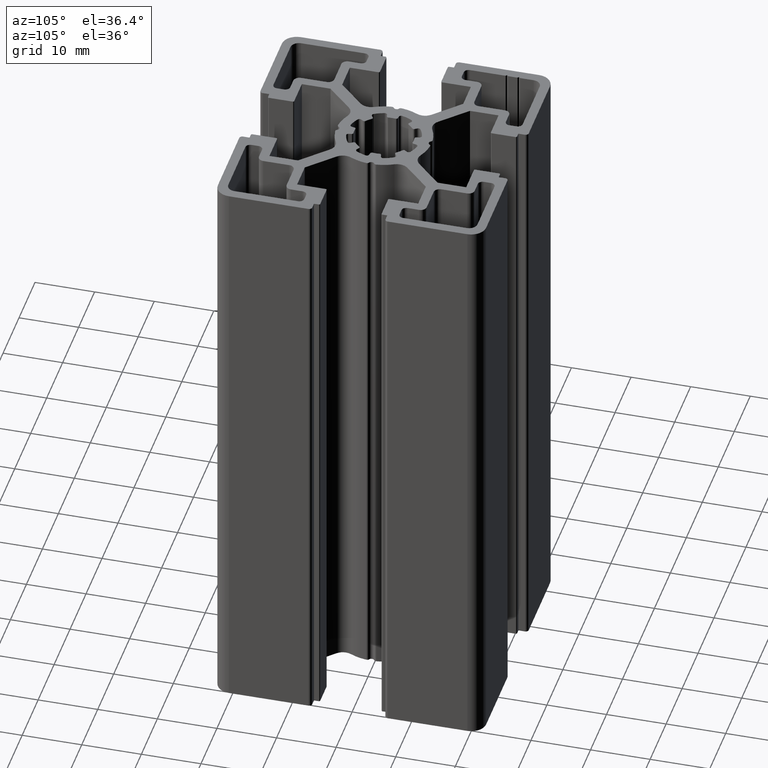
[diagram: clean part render]
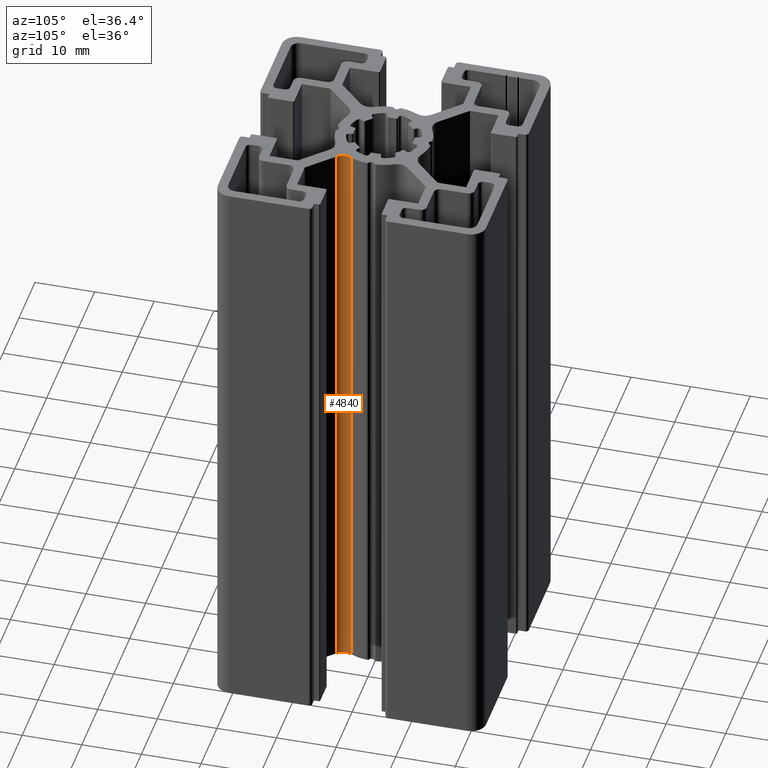
[diagram: same view with one face highlighted and labeled with its STEP entity id]
A machine part, auxiliary view. The second image highlights one B-rep face of the part: STEP entity #4840.
In plain terms, the highlighted cylindrical surface (edge-blend (fillet) strip) has radius 2 mm, axis along (0, 0, 1).
Its self-contained STEP definition (entity closure, byte-faithful):
#199=CIRCLE('',#5265,2.);
#200=CIRCLE('',#5266,2.);
#384=CYLINDRICAL_SURFACE('',#5264,2.);
#584=FACE_OUTER_BOUND('',#832,.T.);
#832=EDGE_LOOP('',(#3705,#3706,#3707,#3708));
#1219=LINE('',#7879,#1685);
#1220=LINE('',#7885,#1686);
#1685=VECTOR('',#6391,100.);
#1686=VECTOR('',#6398,100.);
#2175=VERTEX_POINT('',#7875);
#2176=VERTEX_POINT('',#7877);
#2177=VERTEX_POINT('',#7881);
#2178=VERTEX_POINT('',#7883);
#2817=EDGE_CURVE('',#2176,#2175,#1219,.T.);
#2818=EDGE_CURVE('',#2175,#2177,#199,.T.);
#2819=EDGE_CURVE('',#2178,#2176,#200,.T.);
#2820=EDGE_CURVE('',#2178,#2177,#1220,.T.);
#3705=ORIENTED_EDGE('',*,*,#2818,.F.);
#3706=ORIENTED_EDGE('',*,*,#2817,.F.);
#3707=ORIENTED_EDGE('',*,*,#2819,.F.);
#3708=ORIENTED_EDGE('',*,*,#2820,.T.);
#4840=ADVANCED_FACE('',(#584),#384,.F.);
#5264=AXIS2_PLACEMENT_3D('',#7880,#6392,#6393);
#5265=AXIS2_PLACEMENT_3D('',#7882,#6394,#6395);
#5266=AXIS2_PLACEMENT_3D('',#7884,#6396,#6397);
#6391=DIRECTION('',(0.,0.,1.));
#6392=DIRECTION('center_axis',(0.,0.,1.));
#6393=DIRECTION('ref_axis',(-0.891475343865912,0.453069212460032,0.));
#6394=DIRECTION('center_axis',(0.,0.,-1.));
#6395=DIRECTION('ref_axis',(-0.891475343865912,0.453069212460032,0.));
#6396=DIRECTION('center_axis',(0.,0.,1.));
#6397=DIRECTION('ref_axis',(-0.891475343865912,0.453069212460032,0.));
#6398=DIRECTION('',(0.,0.,1.));
#7875=CARTESIAN_POINT('',(7.5005404734652,-5.94490510184158,100.));
#7877=CARTESIAN_POINT('',(7.5005404734652,-5.94490510184158,0.));
#7879=CARTESIAN_POINT('',(7.5005404734652,-5.94490510184158,0.));
#7880=CARTESIAN_POINT('Origin',(8.91475453583824,-4.5306920394686,0.));
#7881=CARTESIAN_POINT('',(7.13180384810642,-3.62455361454854,100.));
#7882=CARTESIAN_POINT('Origin',(8.91475453583824,-4.5306920394686,100.));
#7883=CARTESIAN_POINT('',(7.13180384810642,-3.62455361454854,0.));
#7884=CARTESIAN_POINT('Origin',(8.91475453583824,-4.5306920394686,0.));
#7885=CARTESIAN_POINT('',(7.13180384810642,-3.62455361454854,0.));